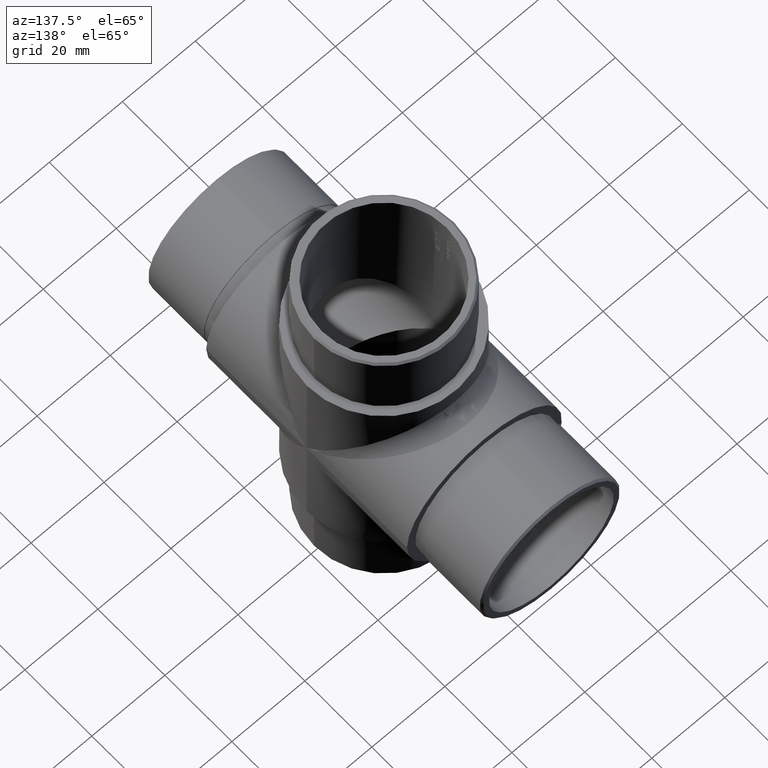
[diagram: clean part render]
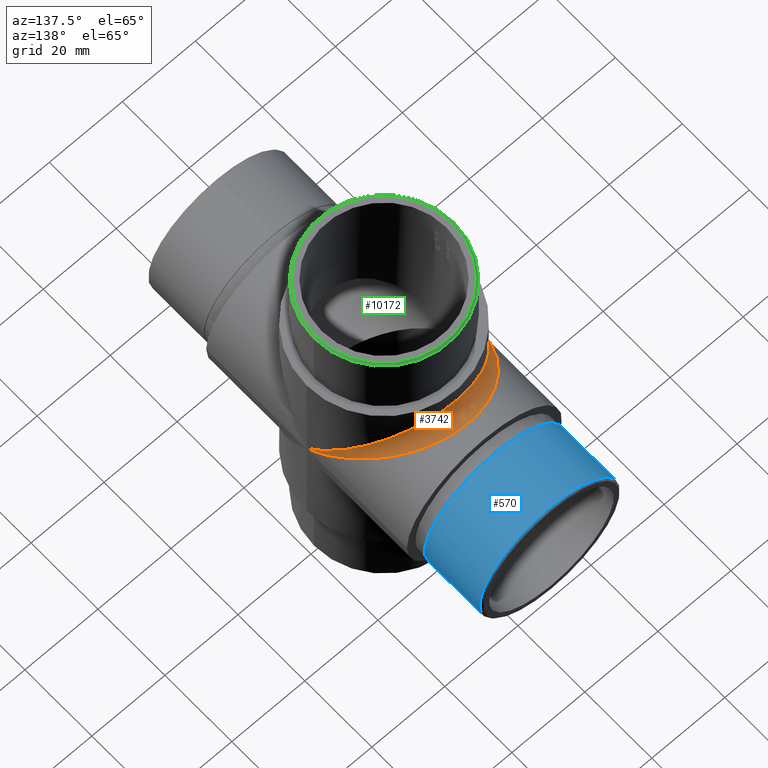
[diagram: same view with three faces highlighted in distinct colors, each labeled with its STEP entity id]
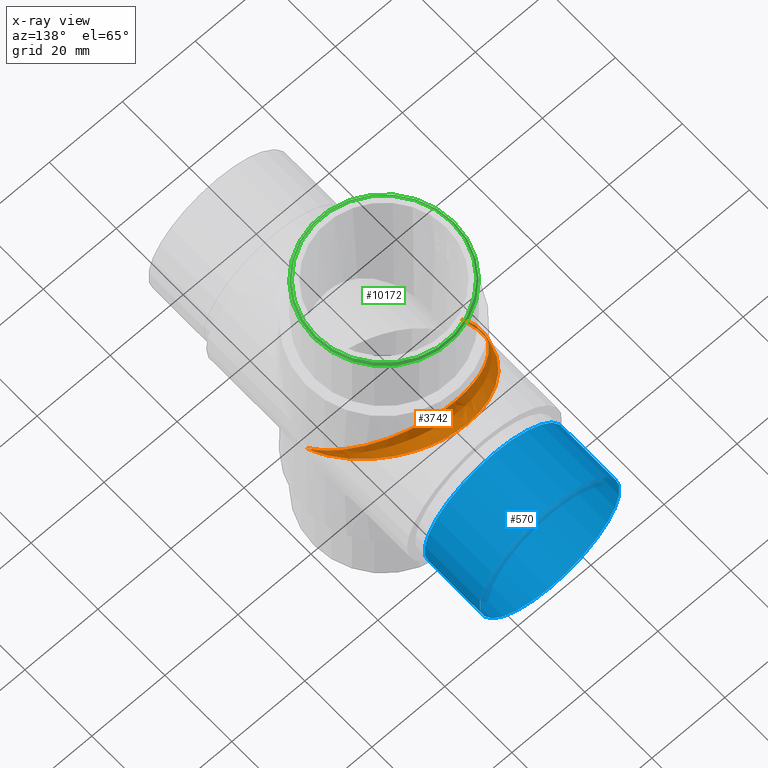
[diagram: x-ray of the same camera — body ghosted, the three highlighted faces saturated]
A machine part, auxiliary view with three faces highlighted in distinct colors.
The next image is the same camera in x-ray (body ghosted, the three faces saturated) — at least one of them is partly hidden behind the body in this view.
Their STEP definitions:

[orange] entity #3742 — the highlighted face is a freeform B-spline surface patch.
#131 = CARTESIAN_POINT ( 'NONE',  ( -20.52195295217691800, 5.496790452212173300, 6.533920726213493100 ) ) ;
#175 = CARTESIAN_POINT ( 'NONE',  ( -5.496790452047796400, 24.39401954697183300, 20.52195295220962000 ) ) ;
#224 = CARTESIAN_POINT ( 'NONE',  ( -6.830971957571542000, 23.91293783551924400, 20.11723341718232700 ) ) ;
#304 = CARTESIAN_POINT ( 'NONE',  ( -14.00952711248328300, 18.98534765696284100, 15.97180040982632400 ) ) ;
#346 = CARTESIAN_POINT ( 'NONE',  ( 16.85628166244771000, 15.37174275536941100, 12.93178358785216500 ) ) ;
#394 = CARTESIAN_POINT ( 'NONE',  ( 21.06334293691954000, 2.775039201274170700, 3.298631503400384400 ) ) ;
#432 = CARTESIAN_POINT ( 'NONE',  ( 19.05525876125006600, 11.16741040025700800, 9.394805574819699200 ) ) ;
#469 = CARTESIAN_POINT ( 'NONE',  ( 16.85628166244771000, 12.93178358785216500, 15.37174275536941100 ) ) ;
#524 = CARTESIAN_POINT ( 'NONE',  ( 1.125737368065418800, 21.19999999999999600, 21.19999999999999600 ) ) ;
#735 = CARTESIAN_POINT ( 'NONE',  ( -21.19999999999999900, 0.0000000000000000000, 0.0000000000000000000 ) ) ;
#1152 = CARTESIAN_POINT ( 'NONE',  ( -19.90922392696803200, 7.462032808400466300, 7.462032808400466300 ) ) ;
#1205 = CARTESIAN_POINT ( 'NONE',  ( -10.62439429223122600, 18.39802989914527800, 21.86935629520933200 ) ) ;
#1382 = CARTESIAN_POINT ( 'NONE',  ( 20.52195295217740100, 5.496790452209719300, 6.533920726212542700 ) ) ;
#1455 = CARTESIAN_POINT ( 'NONE',  ( 12.93178358779725900, 16.85628166248439900, 20.03671216484221400 ) ) ;
#1506 = CARTESIAN_POINT ( 'NONE',  ( 21.19999999999594900, 1.518439369898479700, 1.518439369898479700 ) ) ;
#1507 = VERTEX_POINT ( 'NONE', #11691 ) ;
#2095 = CARTESIAN_POINT ( 'NONE',  ( 21.19999999999999900, 0.0000000000000000000, 0.0000000000000000000 ) ) ;
#2138 = CARTESIAN_POINT ( 'NONE',  ( -21.19999999999594600, 1.518439369897528900, 1.518439369897528900 ) ) ;
#2184 = CARTESIAN_POINT ( 'NONE',  ( -12.93178358779992900, 16.85628166248261200, 20.03671216483891700 ) ) ;
#2229 = CARTESIAN_POINT ( 'NONE',  ( -16.85628166244883600, 12.93178358785048100, 15.37174275536887600 ) ) ;
#2269 = CARTESIAN_POINT ( 'NONE',  ( -20.11723341722873900, 8.119834590943632700, 6.830971957459491200 ) ) ;
#2321 = CARTESIAN_POINT ( 'NONE',  ( -21.19999999999999200, -1.420590287010929300E-015, -1.420590287010929300E-015 ) ) ;
#2364 = CARTESIAN_POINT ( 'NONE',  ( 12.93178358779725900, 20.03671216484221400, 16.85628166248439900 ) ) ;
#2403 = CARTESIAN_POINT ( 'NONE',  ( 21.03526683213854700, 3.046232280294043800, 3.046232280294043800 ) ) ;
#2447 = CARTESIAN_POINT ( 'NONE',  ( 21.19999999999999200, 1.387552495133284500, 1.649354852705602300 ) ) ;
#2490 = CARTESIAN_POINT ( 'NONE',  ( 21.19999999999999200, 4.261770861032789000E-015, 4.261770861032789000E-015 ) ) ;
#2525 = CARTESIAN_POINT ( 'NONE',  ( 10.62439429223383900, 21.86935629520608200, 18.39802989914353000 ) ) ;
#2672 = CARTESIAN_POINT ( 'NONE',  ( 21.19999999999998900, 50.39999999999999900, 42.39999999999999900 ) ) ;
#3180 = CARTESIAN_POINT ( 'NONE',  ( -12.93969731450656900, 16.91546427951859900, 16.91546427951859900 ) ) ;
#3224 = CARTESIAN_POINT ( 'NONE',  ( -10.62439429223122600, 21.86935629520933200, 18.39802989914528200 ) ) ;
#3274 = CARTESIAN_POINT ( 'NONE',  ( -4.558171072701572500, 20.75727134404547400, 20.75727134404547800 ) ) ;
#3316 = CARTESIAN_POINT ( 'NONE',  ( -19.05525876124980700, 11.16741040025690700, 9.394805574820326300 ) ) ;
#3363 = CARTESIAN_POINT ( 'NONE',  ( -20.11723341722873900, 6.830971957459491200, 8.119834590943632700 ) ) ;
#3393 = FACE_OUTER_BOUND ( 'NONE', #4674, .T. ) ;
#3404 = CARTESIAN_POINT ( 'NONE',  ( 11.77272424253031800, 17.73937341178592300, 17.73937341178912400 ) ) ;
#3451 = ORIENTED_EDGE ( 'NONE', *, *, #4562, .F. ) ;
#3454 = CARTESIAN_POINT ( 'NONE',  ( 2.775039201434364300, 21.06334293688768300, 25.03755858535681300 ) ) ;
#3534 = CARTESIAN_POINT ( 'NONE',  ( 8.158931141552964000, 19.65283428329433900, 19.65283428329433900 ) ) ;
#3583 = CARTESIAN_POINT ( 'NONE',  ( 18.66376453321240100, 10.20781610089515300, 10.20781610089515300 ) ) ;
#3645 = VERTEX_POINT ( 'NONE', #2095 ) ;
#3742 = ADVANCED_FACE ( 'NONE', ( #3393 ), #8410, .F. ) ;
#4236 = CARTESIAN_POINT ( 'NONE',  ( -14.00952711248328300, 15.97180040982632400, 18.98534765696284100 ) ) ;
#4282 = CARTESIAN_POINT ( 'NONE',  ( -9.394805574708316300, 22.65059060304957600, 19.05525876129620100 ) ) ;
#4331 = CARTESIAN_POINT ( 'NONE',  ( -2.775039201436070100, 25.03755858535097900, 21.06334293688734500 ) ) ;
#4374 = CARTESIAN_POINT ( 'NONE',  ( -19.05525876124980700, 9.394805574820326300, 11.16741040025690700 ) ) ;
#4420 = CARTESIAN_POINT ( 'NONE',  ( -15.10869200124224500, 14.99341395902995600, 14.99341395902995600 ) ) ;
#4458 = CARTESIAN_POINT ( 'NONE',  ( 12.93969731450659700, 16.91546427951500000, 16.91546427951500000 ) ) ;
#4505 = CARTESIAN_POINT ( 'NONE',  ( 21.19999999999999200, 3.894376821288582800E-015, 4.629164900776994400E-015 ) ) ;
#4548 = CARTESIAN_POINT ( 'NONE',  ( 18.39802989918018000, 12.62899698881857400, 10.62439429217899400 ) ) ;
#4562 = EDGE_CURVE ( 'NONE', #1507, #3645, #8586, .T. ) ;
#4601 = CARTESIAN_POINT ( 'NONE',  ( 5.738669216345221500, 20.48049129745787100, 20.48049129745787100 ) ) ;
#4643 = CARTESIAN_POINT ( 'NONE',  ( 15.97180040982457100, 14.00952711248504000, 16.65283411483915500 ) ) ;
#4674 = EDGE_LOOP ( 'NONE', ( #9139, #3451 ) ) ;
#4886 = CARTESIAN_POINT ( 'NONE',  ( -21.19999999999998900, 50.39999999999999900, 42.39999999999999100 ) ) ;
#5306 = CARTESIAN_POINT ( 'NONE',  ( -5.738669216347003200, 20.48049129745779600, 20.48049129745779600 ) ) ;
#5346 = CARTESIAN_POINT ( 'NONE',  ( -2.775039201436070100, 21.06334293688734500, 25.03755858535097900 ) ) ;
#5443 = CARTESIAN_POINT ( 'NONE',  ( -17.88959957407065100, 11.51175533382327600, 11.51175533382327600 ) ) ;
#5484 = CARTESIAN_POINT ( 'NONE',  ( 20.11723341722846200, 8.119834590943579400, 6.830971957460161700 ) ) ;
#5532 = CARTESIAN_POINT ( 'NONE',  ( 16.11916415240320100, 13.90391388858564200, 13.90391388858564200 ) ) ;
#5613 = CARTESIAN_POINT ( 'NONE',  ( 20.39372171537867800, 6.009736595369608900, 6.009736595369608900 ) ) ;
#5664 = CARTESIAN_POINT ( 'NONE',  ( 5.496790452049437700, 24.39401954696600700, 20.52195295220929300 ) ) ;
#6312 = CARTESIAN_POINT ( 'NONE',  ( -20.52195295217691800, 6.533920726213493100, 5.496790452212173300 ) ) ;
#6364 = CARTESIAN_POINT ( 'NONE',  ( -21.19999999999999200, -1.543054966925664900E-015, -1.298125607096194200E-015 ) ) ;
#6454 = CARTESIAN_POINT ( 'NONE',  ( -21.06334293692004100, 2.775039201271633200, 3.298631503399335000 ) ) ;
#6502 = CARTESIAN_POINT ( 'NONE',  ( -16.85628166244883600, 15.37174275536887600, 12.93178358785048100 ) ) ;
#6540 = CARTESIAN_POINT ( 'NONE',  ( 20.11723341722846200, 6.830971957460161700, 8.119834590943579400 ) ) ;
#6620 = CARTESIAN_POINT ( 'NONE',  ( 15.97180040982457100, 16.65283411483915500, 14.00952711248504000 ) ) ;
#6670 = CARTESIAN_POINT ( 'NONE',  ( 2.239409227887757800, 21.12008364584208000, 21.12008364584208000 ) ) ;
#6713 = CARTESIAN_POINT ( 'NONE',  ( 4.558171072701902000, 20.75727134403971200, 20.75727134403971200 ) ) ;
#7198 =( BOUNDED_CURVE ( )  B_SPLINE_CURVE ( 3, ( #7919, #10003, #9209, #8092 ),
 .UNSPECIFIED., .F., .T. ) 
 B_SPLINE_CURVE_WITH_KNOTS ( ( 4, 4 ),
 ( 1.570796326794896600, 4.712388980384689700 ),
 .UNSPECIFIED. ) 
 CURVE ( )  GEOMETRIC_REPRESENTATION_ITEM ( )  RATIONAL_B_SPLINE_CURVE ( ( 1.000000000000000000, 0.3333333333333333700, 0.3333333333333333700, 1.000000000000000000 ) ) 
 REPRESENTATION_ITEM ( '' )  );
#7430 = CARTESIAN_POINT ( 'NONE',  ( -15.97180040982629900, 16.65283411483918000, 14.00952711248331200 ) ) ;
#7485 = CARTESIAN_POINT ( 'NONE',  ( -20.39372171535857000, 6.009736595368361000, 6.009736595368361000 ) ) ;
#7563 = CARTESIAN_POINT ( 'NONE',  ( 20.52195295217740100, 6.533920726212542700, 5.496790452209719300 ) ) ;
#7603 = CARTESIAN_POINT ( 'NONE',  ( 2.775039201434363900, 25.03755858535681300, 21.06334293688768300 ) ) ;
#7699 = CARTESIAN_POINT ( 'NONE',  ( 21.19999999999999200, 1.649354852705602300, 1.387552495133284500 ) ) ;
#7747 = CARTESIAN_POINT ( 'NONE',  ( 6.830971957570175900, 23.91293783552233500, 20.11723341718288800 ) ) ;
#7846 = EDGE_CURVE ( 'NONE', #3645, #1507, #7198, .T. ) ;
#7919 = CARTESIAN_POINT ( 'NONE',  ( 21.19999999999999900, 0.0000000000000000000, 0.0000000000000000000 ) ) ;
#8092 = CARTESIAN_POINT ( 'NONE',  ( -21.19999999999999900, 0.0000000000000000000, 0.0000000000000000000 ) ) ;
#8383 = CARTESIAN_POINT ( 'NONE',  ( -11.77272424252729800, 17.73937341178263000, 17.73937341178263000 ) ) ;
#8410 =( BOUNDED_SURFACE ( )  B_SPLINE_SURFACE ( 3, 2, ( 
 ( #6364, #2321, #11595 ),
 ( #10419, #2138, #8432 ),
 ( #12527, #8483, #6454 ),
 ( #6312, #7485, #131 ),
 ( #2269, #1152, #3363 ),
 ( #3316, #8527, #4374 ),
 ( #9417, #5443, #11558 ),
 ( #6502, #10596, #2229 ),
 ( #7430, #4420, #9367 ),
 ( #304, #3180, #4236 ),
 ( #11428, #8383, #2184 ),
 ( #3224, #10464, #1205 ),
 ( #4282, #9464, #11469 ),
 ( #224, #5306, #12478 ),
 ( #175, #3274, #10502 ),
 ( #4331, #11514, #5346 ),
 ( #11806, #8740, #11720 ),
 ( #10805, #524, #9643 ),
 ( #7603, #6670, #3454 ),
 ( #5664, #6713, #9731 ),
 ( #7747, #4601, #9609 ),
 ( #12819, #3534, #11760 ),
 ( #2525, #8620, #8569 ),
 ( #2364, #3404, #1455 ),
 ( #10638, #4458, #9684 ),
 ( #6620, #10760, #4643 ),
 ( #346, #5532, #469 ),
 ( #4548, #9780, #8662 ),
 ( #432, #3583, #11645 ),
 ( #5484, #12646, #6540 ),
 ( #7563, #5613, #1382 ),
 ( #12772, #2403, #394 ),
 ( #7699, #1506, #2447 ),
 ( #10680, #2490, #4505 ) ),
 .UNSPECIFIED., .F., .F., .T. ) 
 B_SPLINE_SURFACE_WITH_KNOTS ( ( 4, 2, 2, 2, 2, 2, 2, 2, 2, 2, 2, 2, 2, 2, 2, 2, 4 ),
 ( 3, 3 ),
 ( 1.570796326794896600, 1.767145867644258600, 1.963495408493620700, 2.159844949342982500, 2.356194490192344800, 2.552544031041707100, 2.748893571891069000, 2.945243112740430800, 3.141592653589793100, 3.337942194439155400, 3.534291735288517300, 3.730641276137879100, 3.926990816987241400, 4.123340357836603700, 4.319689898685965100, 4.516039439535327400, 4.712388980384689700 ),
 ( 0.0000000000000000000, 1.000000000000000000 ),
 .UNSPECIFIED. ) 
 GEOMETRIC_REPRESENTATION_ITEM ( )  RATIONAL_B_SPLINE_SURFACE ( (
 ( 1.000000000000000000, 1.000000000000000000, 1.000000000000000000),
 ( 1.000000000000000000, 1.000009746408525400, 1.000000000000000000),
 ( 1.000000000000000000, 0.9967613244636435200, 1.000000000000000000),
 ( 1.000000000000000000, 0.9841171504840973100, 1.000000000000000000),
 ( 1.000000000000000000, 0.9747108043703879300, 1.000000000000000000),
 ( 1.000000000000000000, 0.9506740353919248500, 1.000000000000000000),
 ( 1.000000000000000000, 0.9360421842821699000, 1.000000000000000000),
 ( 1.000000000000000000, 0.9031650994042259600, 1.000000000000000000),
 ( 1.000000000000000000, 0.8849191471496548100, 1.000000000000000000),
 ( 1.000000000000000000, 0.8471316604192219400, 1.000000000000000000),
 ( 1.000000000000000000, 0.8275942696179725600, 1.000000000000000000),
 ( 1.000000000000000000, 0.7902180086253696200, 1.000000000000000000),
 ( 1.000000000000000000, 0.7723968218425847400, 1.000000000000000000),
 ( 1.000000000000000000, 0.7418334178546199800, 1.000000000000000000),
 ( 1.000000000000000000, 0.7291288940373567000, 1.000000000000000000),
 ( 1.000000000000000000, 0.7117460025059613200, 1.000000000000000000),
 ( 1.000000000000000000, 0.7071067811865475700, 1.000000000000000000),
 ( 1.000000000000000000, 0.7071067811865475700, 1.000000000000000000),
 ( 1.000000000000000000, 0.7117460025059605400, 1.000000000000000000),
 ( 1.000000000000000000, 0.7291288940373559200, 1.000000000000000000),
 ( 1.000000000000000000, 0.7418334178545212800, 1.000000000000000000),
 ( 1.000000000000000000, 0.7723968218426821000, 1.000000000000000000),
 ( 1.000000000000000000, 0.7902180086252642600, 1.000000000000000000),
 ( 1.000000000000000000, 0.8275942696180766900, 1.000000000000000000),
 ( 1.000000000000000000, 0.8471316604192223900, 1.000000000000000000),
 ( 1.000000000000000000, 0.8849191471496552500, 1.000000000000000000),
 ( 1.000000000000000000, 0.9031650994043459700, 1.000000000000000000),
 ( 1.000000000000000000, 0.9360421842820495500, 1.000000000000000000),
 ( 1.000000000000000000, 0.9506740353920163400, 1.000000000000000000),
 ( 1.000000000000000000, 0.9747108043702963400, 1.000000000000000000),
 ( 1.000000000000000000, 0.9841171504839688600, 1.000000000000000000),
 ( 1.000000000000000000, 0.9967613244637715300, 1.000000000000000000),
 ( 1.000000000000000000, 1.000009746408429200, 1.000000000000000000),
 ( 1.000000000000000000, 1.000000000000000000, 1.000000000000000000) ) ) 
 REPRESENTATION_ITEM ( '' )  SURFACE ( )  );
#8432 = CARTESIAN_POINT ( 'NONE',  ( -21.19999999999999200, 1.387552495134386500, 1.649354852706912200 ) ) ;
#8483 = CARTESIAN_POINT ( 'NONE',  ( -21.03526683215851300, 3.046232280294806700, 3.046232280294806700 ) ) ;
#8527 = CARTESIAN_POINT ( 'NONE',  ( -18.66376453321938900, 10.20781610089993800, 10.20781610089993800 ) ) ;
#8569 = CARTESIAN_POINT ( 'NONE',  ( 10.62439429223383900, 18.39802989914353000, 21.86935629520608200 ) ) ;
#8586 =( BOUNDED_CURVE ( )  B_SPLINE_CURVE ( 3, ( #735, #4886, #2672, #12055 ),
 .UNSPECIFIED., .F., .T. ) 
 B_SPLINE_CURVE_WITH_KNOTS ( ( 4, 4 ),
 ( 1.570796326794896800, 4.712388980384689700 ),
 .UNSPECIFIED. ) 
 CURVE ( )  GEOMETRIC_REPRESENTATION_ITEM ( )  RATIONAL_B_SPLINE_CURVE ( ( 1.000000000000000000, 0.3333333333333333700, 0.3333333333333333700, 1.000000000000000000 ) ) 
 REPRESENTATION_ITEM ( '' )  );
#8620 = CARTESIAN_POINT ( 'NONE',  ( 9.380193309304587500, 19.11560716347160800, 19.11560716346826200 ) ) ;
#8662 = CARTESIAN_POINT ( 'NONE',  ( 18.39802989918018000, 10.62439429217899400, 12.62899698881857400 ) ) ;
#8740 = CARTESIAN_POINT ( 'NONE',  ( -1.125737368065392600, 21.19999999999999600, 21.19999999999999600 ) ) ;
#9139 = ORIENTED_EDGE ( 'NONE', *, *, #7846, .F. ) ;
#9209 = CARTESIAN_POINT ( 'NONE',  ( -21.19999999999998900, 42.39999999999999900, 50.39999999999999900 ) ) ;
#9367 = CARTESIAN_POINT ( 'NONE',  ( -15.97180040982629900, 14.00952711248331200, 16.65283411483918000 ) ) ;
#9417 = CARTESIAN_POINT ( 'NONE',  ( -18.39802989917909000, 12.62899698881904700, 10.62439429218062700 ) ) ;
#9464 = CARTESIAN_POINT ( 'NONE',  ( -8.158931141551665400, 19.65283428329426800, 19.65283428329426800 ) ) ;
#9609 = CARTESIAN_POINT ( 'NONE',  ( 6.830971957570175900, 20.11723341718288800, 23.91293783552233500 ) ) ;
#9643 = CARTESIAN_POINT ( 'NONE',  ( 1.387536754971349100, 21.19999999999999600, 25.19999999999999600 ) ) ;
#9684 = CARTESIAN_POINT ( 'NONE',  ( 14.00952711248506200, 15.97180040982455100, 18.98534765696281200 ) ) ;
#9731 = CARTESIAN_POINT ( 'NONE',  ( 5.496790452049437700, 20.52195295220929300, 24.39401954696600700 ) ) ;
#9780 = CARTESIAN_POINT ( 'NONE',  ( 17.88959957407271200, 11.51175533382380000, 11.51175533382380000 ) ) ;
#10003 = CARTESIAN_POINT ( 'NONE',  ( 21.19999999999999900, 42.39999999999999100, 50.39999999999999900 ) ) ;
#10419 = CARTESIAN_POINT ( 'NONE',  ( -21.19999999999999200, 1.649354852706912200, 1.387552495134386500 ) ) ;
#10464 = CARTESIAN_POINT ( 'NONE',  ( -9.380193309308133100, 19.11560716347484900, 19.11560716347484900 ) ) ;
#10502 = CARTESIAN_POINT ( 'NONE',  ( -5.496790452047796400, 20.52195295220962000, 24.39401954697183300 ) ) ;
#10596 = CARTESIAN_POINT ( 'NONE',  ( -16.11916415240514100, 13.90391388858645000, 13.90391388858645000 ) ) ;
#10638 = CARTESIAN_POINT ( 'NONE',  ( 14.00952711248506200, 18.98534765696281200, 15.97180040982455100 ) ) ;
#10680 = CARTESIAN_POINT ( 'NONE',  ( 21.19999999999999200, 4.629164900776994400E-015, 3.894376821288582800E-015 ) ) ;
#10760 = CARTESIAN_POINT ( 'NONE',  ( 15.10869200124227200, 14.99341395903336100, 14.99341395903336100 ) ) ;
#10805 = CARTESIAN_POINT ( 'NONE',  ( 1.387536754971349100, 25.19999999999999600, 21.19999999999999600 ) ) ;
#11428 = CARTESIAN_POINT ( 'NONE',  ( -12.93178358779992900, 20.03671216483891700, 16.85628166248261200 ) ) ;
#11469 = CARTESIAN_POINT ( 'NONE',  ( -9.394805574708316300, 19.05525876129620100, 22.65059060304957600 ) ) ;
#11514 = CARTESIAN_POINT ( 'NONE',  ( -2.239409227888156600, 21.12008364583617800, 21.12008364583618200 ) ) ;
#11558 = CARTESIAN_POINT ( 'NONE',  ( -18.39802989917909000, 10.62439429218062700, 12.62899698881904700 ) ) ;
#11595 = CARTESIAN_POINT ( 'NONE',  ( -21.19999999999999200, -1.298125607096194200E-015, -1.543054966925664900E-015 ) ) ;
#11645 = CARTESIAN_POINT ( 'NONE',  ( 19.05525876125006600, 9.394805574819699200, 11.16741040025700800 ) ) ;
#11691 = CARTESIAN_POINT ( 'NONE',  ( -21.19999999999999900, 0.0000000000000000000, 0.0000000000000000000 ) ) ;
#11720 = CARTESIAN_POINT ( 'NONE',  ( -1.387536754971316500, 21.19999999999999600, 25.19999999999999600 ) ) ;
#11760 = CARTESIAN_POINT ( 'NONE',  ( 9.394805574709568700, 19.05525876129569000, 22.65059060304654200 ) ) ;
#11806 = CARTESIAN_POINT ( 'NONE',  ( -1.387536754971316500, 25.19999999999999600, 21.19999999999999600 ) ) ;
#12055 = CARTESIAN_POINT ( 'NONE',  ( 21.19999999999999900, 0.0000000000000000000, 0.0000000000000000000 ) ) ;
#12478 = CARTESIAN_POINT ( 'NONE',  ( -6.830971957571542000, 20.11723341718232700, 23.91293783551924400 ) ) ;
#12527 = CARTESIAN_POINT ( 'NONE',  ( -21.06334293692004100, 3.298631503399335000, 2.775039201271633200 ) ) ;
#12646 = CARTESIAN_POINT ( 'NONE',  ( 19.90922392697493800, 7.462032808404920600, 7.462032808404920600 ) ) ;
#12772 = CARTESIAN_POINT ( 'NONE',  ( 21.06334293691954000, 3.298631503400384400, 2.775039201274170700 ) ) ;
#12819 = CARTESIAN_POINT ( 'NONE',  ( 9.394805574709568700, 22.65059060304654200, 19.05525876129569000 ) ) ;

[blue] entity #570 — the highlighted cylindrical surface (bore or boss wall) has radius 19.15 mm, axis along (-0, -1, -0).
#366 = EDGE_CURVE ( 'NONE', #10198, #10198, #3360, .T. ) ;
#570 = ADVANCED_FACE ( 'NONE', ( #8214, #10634 ), #9659, .T. ) ;
#926 = CARTESIAN_POINT ( 'NONE',  ( 0.0000000000000000000, 50.00000000000000000, 0.0000000000000000000 ) ) ;
#1922 = DIRECTION ( 'NONE',  ( 0.0000000000000000000, 0.0000000000000000000, 1.000000000000000000 ) ) ;
#3360 = CIRCLE ( 'NONE', #9123, 19.15000000000000200 ) ;
#3418 = EDGE_LOOP ( 'NONE', ( #8916 ) ) ;
#3984 = CARTESIAN_POINT ( 'NONE',  ( 0.0000000000000000000, 33.00000000000000000, 19.15000000000000200 ) ) ;
#4229 = DIRECTION ( 'NONE',  ( 0.0000000000000000000, 0.0000000000000000000, -1.000000000000000000 ) ) ;
#4742 = AXIS2_PLACEMENT_3D ( 'NONE', #926, #11380, #4229 ) ;
#4859 = VERTEX_POINT ( 'NONE', #12416 ) ;
#7068 = CARTESIAN_POINT ( 'NONE',  ( 0.0000000000000000000, 49.49999999999999300, 0.0000000000000000000 ) ) ;
#7542 = CIRCLE ( 'NONE', #12358, 19.15000000000000200 ) ;
#8113 = DIRECTION ( 'NONE',  ( 0.0000000000000000000, -1.000000000000000000, 0.0000000000000000000 ) ) ;
#8214 = FACE_OUTER_BOUND ( 'NONE', #3418, .T. ) ;
#8544 = DIRECTION ( 'NONE',  ( 0.0000000000000000000, 1.000000000000000000, 0.0000000000000000000 ) ) ;
#8588 = CARTESIAN_POINT ( 'NONE',  ( 0.0000000000000000000, 33.00000000000000000, 0.0000000000000000000 ) ) ;
#8916 = ORIENTED_EDGE ( 'NONE', *, *, #9496, .T. ) ;
#9123 = AXIS2_PLACEMENT_3D ( 'NONE', #8588, #8544, #11611 ) ;
#9496 = EDGE_CURVE ( 'NONE', #4859, #4859, #7542, .T. ) ;
#9659 = CYLINDRICAL_SURFACE ( 'NONE', #4742, 19.15000000000000200 ) ;
#10198 = VERTEX_POINT ( 'NONE', #3984 ) ;
#10634 = FACE_OUTER_BOUND ( 'NONE', #10724, .T. ) ;
#10724 = EDGE_LOOP ( 'NONE', ( #11921 ) ) ;
#11380 = DIRECTION ( 'NONE',  ( -0.0000000000000000000, -1.000000000000000000, -0.0000000000000000000 ) ) ;
#11611 = DIRECTION ( 'NONE',  ( 0.0000000000000000000, 0.0000000000000000000, 1.000000000000000000 ) ) ;
#11921 = ORIENTED_EDGE ( 'NONE', *, *, #366, .T. ) ;
#12358 = AXIS2_PLACEMENT_3D ( 'NONE', #7068, #8113, #1922 ) ;
#12416 = CARTESIAN_POINT ( 'NONE',  ( 0.0000000000000000000, 49.49999999999999300, 19.15000000000000200 ) ) ;

[green] entity #10172 — the highlighted conical surface has half-angle 45 deg.
#408 = DIRECTION ( 'NONE',  ( 1.000000000000000000, 0.0000000000000000000, 0.0000000000000000000 ) ) ;
#836 = AXIS2_PLACEMENT_3D ( 'NONE', #4979, #3865, #7930 ) ;
#2031 = ORIENTED_EDGE ( 'NONE', *, *, #2306, .F. ) ;
#2306 = EDGE_CURVE ( 'NONE', #9547, #9547, #11660, .T. ) ;
#3560 = CARTESIAN_POINT ( 'NONE',  ( 0.0000000000000000000, 0.0000000000000000000, 50.00000000000000000 ) ) ;
#3855 = EDGE_CURVE ( 'NONE', #12564, #12564, #12058, .T. ) ;
#3865 = DIRECTION ( 'NONE',  ( 0.0000000000000000000, 0.0000000000000000000, -1.000000000000000000 ) ) ;
#3949 = CARTESIAN_POINT ( 'NONE',  ( 19.15000000000000200, 0.0000000000000000000, 49.49999999999999300 ) ) ;
#4316 = FACE_OUTER_BOUND ( 'NONE', #8889, .T. ) ;
#4357 = EDGE_LOOP ( 'NONE', ( #2031 ) ) ;
#4581 = DIRECTION ( 'NONE',  ( 0.0000000000000000000, 0.0000000000000000000, -1.000000000000000000 ) ) ;
#4979 = CARTESIAN_POINT ( 'NONE',  ( 0.0000000000000000000, 0.0000000000000000000, 49.49999999999999300 ) ) ;
#5103 = FACE_BOUND ( 'NONE', #4357, .T. ) ;
#6416 = CONICAL_SURFACE ( 'NONE', #11610, 18.64999999999999900, 0.7853981633974447300 ) ;
#7930 = DIRECTION ( 'NONE',  ( 1.000000000000000000, 0.0000000000000000000, 0.0000000000000000000 ) ) ;
#8102 = AXIS2_PLACEMENT_3D ( 'NONE', #12702, #8640, #408 ) ;
#8640 = DIRECTION ( 'NONE',  ( 0.0000000000000000000, 0.0000000000000000000, 1.000000000000000000 ) ) ;
#8889 = EDGE_LOOP ( 'NONE', ( #10166 ) ) ;
#9083 = CARTESIAN_POINT ( 'NONE',  ( 18.64999999999999900, 0.0000000000000000000, 50.00000000000000000 ) ) ;
#9547 = VERTEX_POINT ( 'NONE', #9083 ) ;
#10166 = ORIENTED_EDGE ( 'NONE', *, *, #3855, .F. ) ;
#10172 = ADVANCED_FACE ( 'NONE', ( #4316, #5103 ), #6416, .T. ) ;
#11610 = AXIS2_PLACEMENT_3D ( 'NONE', #3560, #4581, #11873 ) ;
#11660 = CIRCLE ( 'NONE', #8102, 18.64999999999999900 ) ;
#11873 = DIRECTION ( 'NONE',  ( -1.000000000000000000, 0.0000000000000000000, 0.0000000000000000000 ) ) ;
#12058 = CIRCLE ( 'NONE', #836, 19.15000000000000200 ) ;
#12564 = VERTEX_POINT ( 'NONE', #3949 ) ;
#12702 = CARTESIAN_POINT ( 'NONE',  ( 0.0000000000000000000, 0.0000000000000000000, 50.00000000000000000 ) ) ;